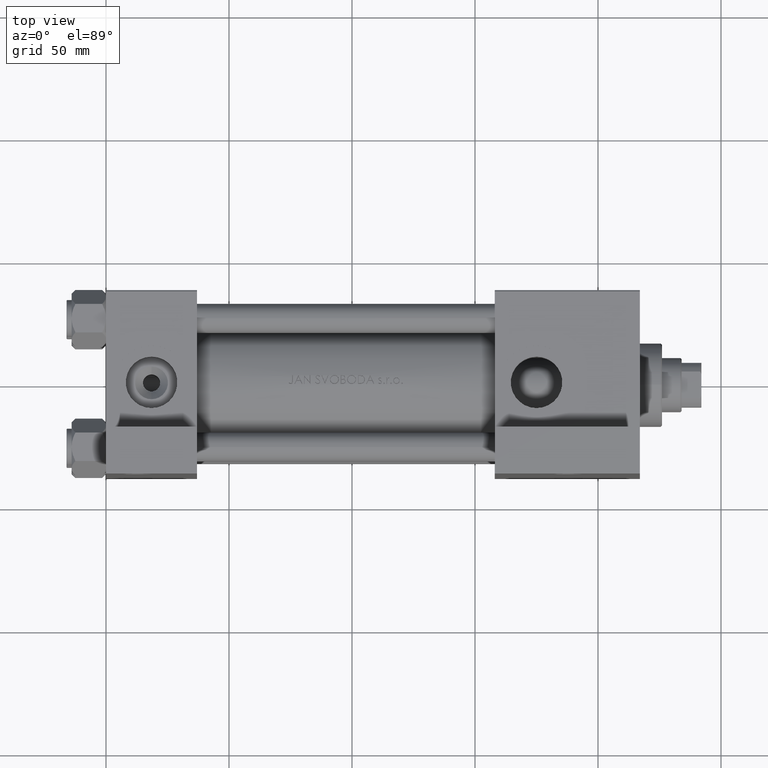
[diagram: clean part render]
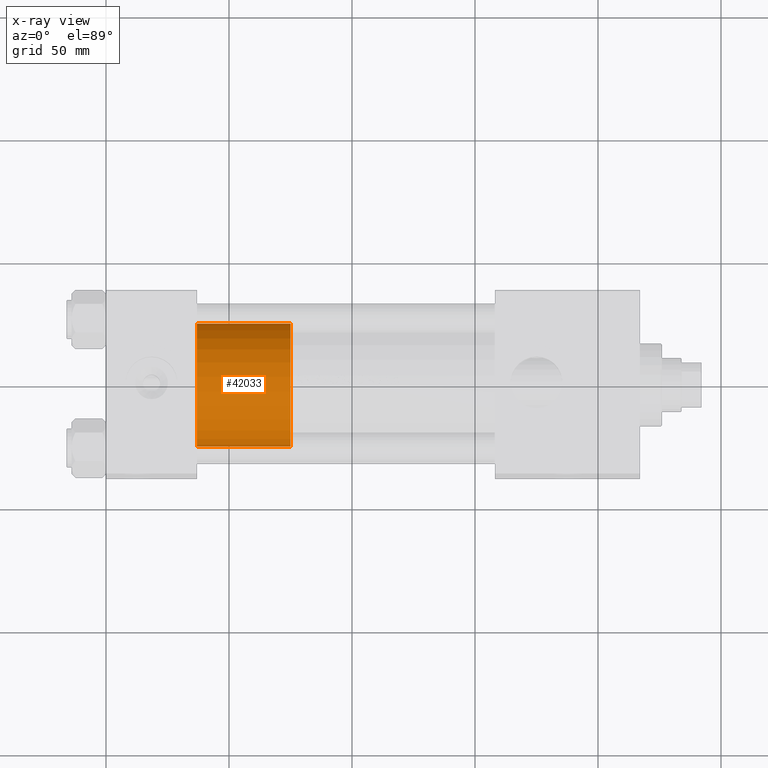
[diagram: x-ray — body ghosted, one internal face saturated and labeled with its STEP entity id]
A machine part, top view, then the same camera in x-ray: the body is ghosted and one INTERNAL B-rep face — a face not visible from any outside direction — is saturated and labeled: STEP entity #42033.
In plain terms, the highlighted cylindrical surface (partial cylindrical patch) has radius 25 mm, axis along (-1, 0, 0).
Its self-contained STEP definition (entity closure, byte-faithful):
#85 = VERTEX_POINT ( 'NONE', #39983 ) ;
#407 = CIRCLE ( 'NONE', #7587, 25.00000000000000000 ) ;
#3034 = CARTESIAN_POINT ( 'NONE',  ( 25.00000000000000000, 3.061616997868383043E-15, 38.00000000000000000 ) ) ;
#3379 = CARTESIAN_POINT ( 'NONE',  ( -25.00000000000000000, 0.000000000000000000, 38.00000000000000000 ) ) ;
#6088 = EDGE_LOOP ( 'NONE', ( #10376, #27227, #12904, #44971 ) ) ;
#6663 = VERTEX_POINT ( 'NONE', #3379 ) ;
#7587 = AXIS2_PLACEMENT_3D ( 'NONE', #45723, #42257, #30793 ) ;
#7896 = EDGE_CURVE ( 'NONE', #35748, #85, #407, .T. ) ;
#10369 = VERTEX_POINT ( 'NONE', #14739 ) ;
#10376 = ORIENTED_EDGE ( 'NONE', *, *, #11341, .F. ) ;
#11341 = EDGE_CURVE ( 'NONE', #10369, #85, #40665, .T. ) ;
#12904 = ORIENTED_EDGE ( 'NONE', *, *, #33024, .T. ) ;
#13269 = DIRECTION ( 'NONE',  ( 1.000000000000000000, 0.000000000000000000, 0.000000000000000000 ) ) ;
#14739 = CARTESIAN_POINT ( 'NONE',  ( 25.00000000000000000, 3.061616997868383043E-15, 38.00000000000000000 ) ) ;
#20980 = DIRECTION ( 'NONE',  ( 0.000000000000000000, 0.000000000000000000, 1.000000000000000000 ) ) ;
#21517 = VECTOR ( 'NONE', #44743, 1000.000000000000000 ) ;
#21977 = DIRECTION ( 'NONE',  ( -0.000000000000000000, -0.000000000000000000, -1.000000000000000000 ) ) ;
#24433 = CARTESIAN_POINT ( 'NONE',  ( -25.00000000000000000, 0.000000000000000000, 0.000000000000000000 ) ) ;
#25511 = FACE_OUTER_BOUND ( 'NONE', #6088, .T. ) ;
#27227 = ORIENTED_EDGE ( 'NONE', *, *, #28242, .F. ) ;
#28242 = EDGE_CURVE ( 'NONE', #6663, #10369, #29585, .T. ) ;
#29585 = CIRCLE ( 'NONE', #41494, 25.00000000000000000 ) ;
#30793 = DIRECTION ( 'NONE',  ( 1.000000000000000000, 0.000000000000000000, 0.000000000000000000 ) ) ;
#33024 = EDGE_CURVE ( 'NONE', #6663, #35748, #37538, .T. ) ;
#35748 = VERTEX_POINT ( 'NONE', #24433 ) ;
#37535 = AXIS2_PLACEMENT_3D ( 'NONE', #41193, #41440, #40954 ) ;
#37538 = LINE ( 'NONE', #46402, #21517 ) ;
#39983 = CARTESIAN_POINT ( 'NONE',  ( 25.00000000000000000, 3.061616997868383043E-15, 0.000000000000000000 ) ) ;
#40324 = VECTOR ( 'NONE', #21977, 1000.000000000000000 ) ;
#40665 = LINE ( 'NONE', #3034, #40324 ) ;
#40711 = CYLINDRICAL_SURFACE ( 'NONE', #37535, 25.00000000000000000 ) ;
#40954 = DIRECTION ( 'NONE',  ( -1.000000000000000000, 0.000000000000000000, 0.000000000000000000 ) ) ;
#41193 = CARTESIAN_POINT ( 'NONE',  ( 0.000000000000000000, 0.000000000000000000, 38.00000000000000000 ) ) ;
#41440 = DIRECTION ( 'NONE',  ( -0.000000000000000000, -0.000000000000000000, -1.000000000000000000 ) ) ;
#41494 = AXIS2_PLACEMENT_3D ( 'NONE', #47369, #20980, #13269 ) ;
#42033 = ADVANCED_FACE ( 'NONE', ( #25511 ), #40711, .T. ) ;
#42257 = DIRECTION ( 'NONE',  ( 0.000000000000000000, 0.000000000000000000, 1.000000000000000000 ) ) ;
#44743 = DIRECTION ( 'NONE',  ( -0.000000000000000000, -0.000000000000000000, -1.000000000000000000 ) ) ;
#44971 = ORIENTED_EDGE ( 'NONE', *, *, #7896, .T. ) ;
#45723 = CARTESIAN_POINT ( 'NONE',  ( 0.000000000000000000, 0.000000000000000000, 0.000000000000000000 ) ) ;
#46402 = CARTESIAN_POINT ( 'NONE',  ( -25.00000000000000000, 0.000000000000000000, 38.00000000000000000 ) ) ;
#47369 = CARTESIAN_POINT ( 'NONE',  ( 0.000000000000000000, 0.000000000000000000, 38.00000000000000000 ) ) ;